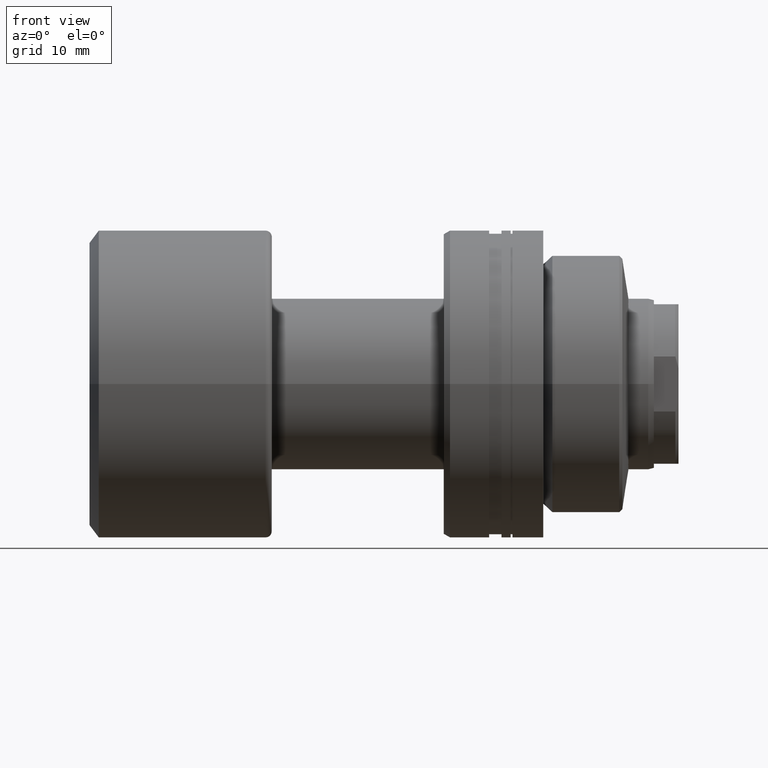
[diagram: clean part render]
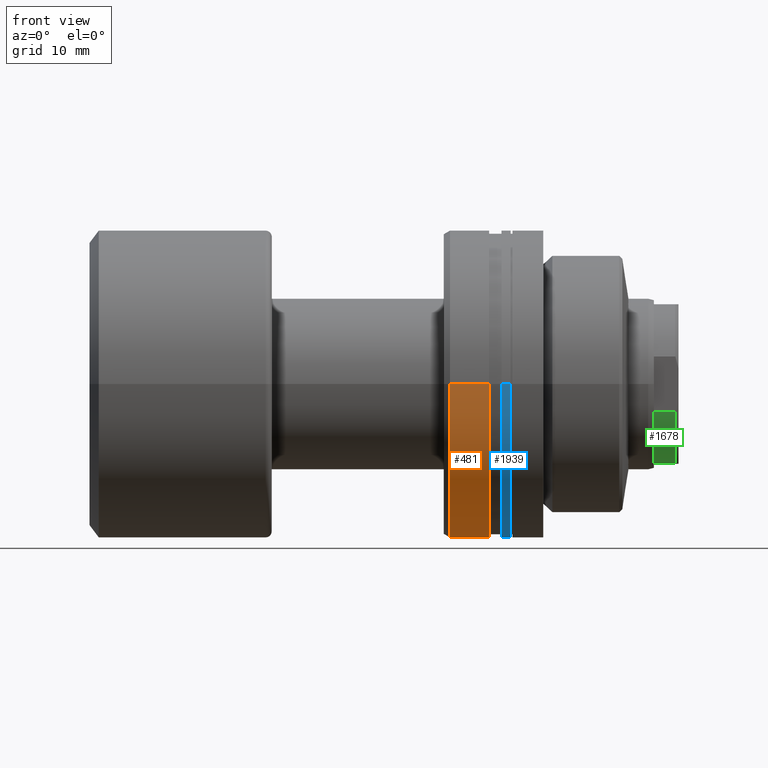
[diagram: same view with three faces highlighted in distinct colors, each labeled with its STEP entity id]
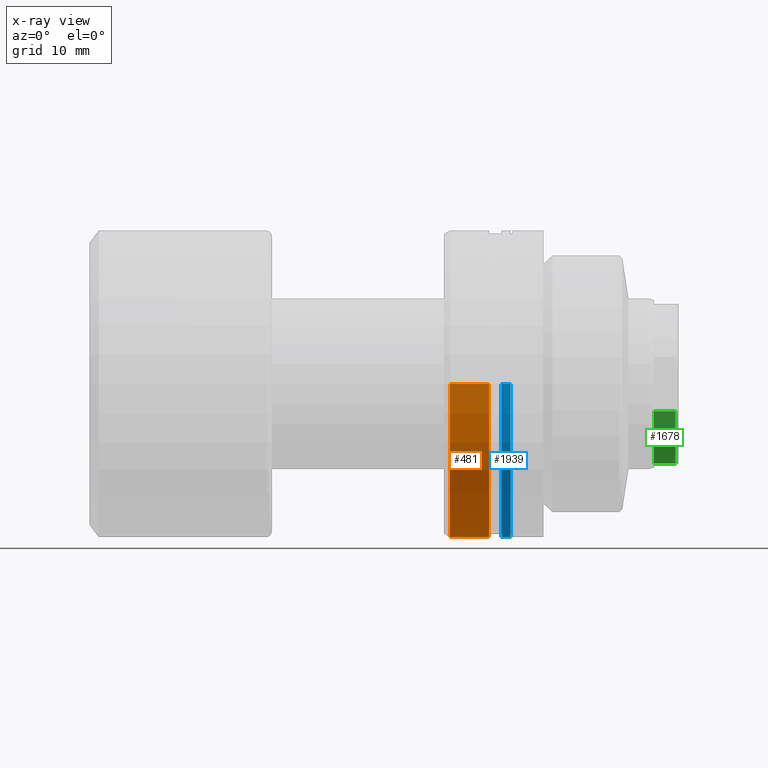
[diagram: x-ray of the same camera — body ghosted, the three highlighted faces saturated]
A machine part, front view with three faces highlighted in distinct colors.
The next image is the same camera in x-ray (body ghosted, the three faces saturated) — at least one of them is partly hidden behind the body in this view.
Their STEP definitions:

[orange] entity #481 — the highlighted cylindrical surface (partial cylindrical patch) has radius 25 mm, axis along (1, 0, 0).
#31 = FACE_OUTER_BOUND ( 'NONE', #1403, .T. ) ;
#32 = CARTESIAN_POINT ( 'NONE',  ( -24.80878161770242585, 1.056712457330933578E-14, 0.000000000000000000 ) ) ;
#368 = VERTEX_POINT ( 'NONE', #544 ) ;
#401 = DIRECTION ( 'NONE',  ( 1.000000000000000000, 1.931394410353556421E-15, -0.000000000000000000 ) ) ;
#405 = EDGE_CURVE ( 'NONE', #636, #368, #1341, .T. ) ;
#436 = CYLINDRICAL_SURFACE ( 'NONE', #562, 25.00000000000000711 ) ;
#481 = ADVANCED_FACE ( 'NONE', ( #31 ), #436, .T. ) ;
#544 = CARTESIAN_POINT ( 'NONE',  ( -31.20000000000027640, 25.00000000000000000, 0.000000000000000000 ) ) ;
#562 = AXIS2_PLACEMENT_3D ( 'NONE', #1848, #583, #951 ) ;
#583 = DIRECTION ( 'NONE',  ( 1.000000000000000000, 1.931394410353556421E-15, -0.000000000000000000 ) ) ;
#621 = DIRECTION ( 'NONE',  ( 1.000000000000000000, 1.931394410353556421E-15, -0.000000000000000000 ) ) ;
#635 = DIRECTION ( 'NONE',  ( 1.000000000000000000, 1.931394410353556421E-15, -0.000000000000000000 ) ) ;
#636 = VERTEX_POINT ( 'NONE', #2083 ) ;
#695 = CARTESIAN_POINT ( 'NONE',  ( -30.28002276692737382, 25.00000000000000711, 0.000000000000000000 ) ) ;
#884 = EDGE_CURVE ( 'NONE', #368, #1506, #1751, .T. ) ;
#951 = DIRECTION ( 'NONE',  ( -1.942890293094023551E-15, 1.000000000000000000, 0.000000000000000000 ) ) ;
#1159 = ORIENTED_EDGE ( 'NONE', *, *, #1632, .F. ) ;
#1329 = LINE ( 'NONE', #1700, #2172 ) ;
#1341 = CIRCLE ( 'NONE', #2099, 25.00000000000000000 ) ;
#1403 = EDGE_LOOP ( 'NONE', ( #1159, #1957, #2043, #1771 ) ) ;
#1405 = DIRECTION ( 'NONE',  ( 1.000000000000000000, 1.931394410353556421E-15, -0.000000000000000000 ) ) ;
#1500 = AXIS2_PLACEMENT_3D ( 'NONE', #32, #401, #2008 ) ;
#1506 = VERTEX_POINT ( 'NONE', #2025 ) ;
#1632 = EDGE_CURVE ( 'NONE', #636, #1998, #1329, .T. ) ;
#1700 = CARTESIAN_POINT ( 'NONE',  ( -30.28002276692727435, -25.00000000000000711, 3.061616997868383831E-15 ) ) ;
#1751 = LINE ( 'NONE', #695, #1977 ) ;
#1771 = ORIENTED_EDGE ( 'NONE', *, *, #1923, .F. ) ;
#1848 = CARTESIAN_POINT ( 'NONE',  ( -30.28002276692732408, 0.000000000000000000, 0.000000000000000000 ) ) ;
#1913 = CIRCLE ( 'NONE', #1500, 25.00000000000001776 ) ;
#1923 = EDGE_CURVE ( 'NONE', #1998, #1506, #1913, .T. ) ;
#1957 = ORIENTED_EDGE ( 'NONE', *, *, #405, .T. ) ;
#1977 = VECTOR ( 'NONE', #1405, 1000.000000000000000 ) ;
#1998 = VERTEX_POINT ( 'NONE', #2183 ) ;
#2008 = DIRECTION ( 'NONE',  ( -1.942890293094022762E-15, 1.000000000000000000, 0.000000000000000000 ) ) ;
#2025 = CARTESIAN_POINT ( 'NONE',  ( -24.80878161770247559, 25.00000000000002842, 0.000000000000000000 ) ) ;
#2043 = ORIENTED_EDGE ( 'NONE', *, *, #884, .T. ) ;
#2083 = CARTESIAN_POINT ( 'NONE',  ( -31.20000000000018048, -25.00000000000000000, 3.061616997868383043E-15 ) ) ;
#2099 = AXIS2_PLACEMENT_3D ( 'NONE', #2207, #621, #2193 ) ;
#2172 = VECTOR ( 'NONE', #635, 1000.000000000000000 ) ;
#2183 = CARTESIAN_POINT ( 'NONE',  ( -24.80878161770237611, -25.00000000000000711, 3.061616997868384620E-15 ) ) ;
#2193 = DIRECTION ( 'NONE',  ( -1.942890293094023946E-15, 1.000000000000000000, 0.000000000000000000 ) ) ;
#2207 = CARTESIAN_POINT ( 'NONE',  ( -31.20000000000022666, -1.776838885609536354E-15, 0.000000000000000000 ) ) ;

[blue] entity #1939 — the highlighted cylindrical surface (partial cylindrical patch) has radius 25 mm, axis along (1, 0, 0).
#56 = DIRECTION ( 'NONE',  ( 1.000000000000000000, 1.931394410353556421E-15, -0.000000000000000000 ) ) ;
#158 = AXIS2_PLACEMENT_3D ( 'NONE', #2213, #578, #442 ) ;
#192 = AXIS2_PLACEMENT_3D ( 'NONE', #241, #811, #2266 ) ;
#210 = CARTESIAN_POINT ( 'NONE',  ( -22.80000000000000071, -25.00000000000000355, 3.061616997868385804E-15 ) ) ;
#241 = CARTESIAN_POINT ( 'NONE',  ( -22.80000000000005045, 1.444687416136068295E-14, 0.000000000000000000 ) ) ;
#389 = DIRECTION ( 'NONE',  ( 1.000000000000000000, 1.931394410353556421E-15, -0.000000000000000000 ) ) ;
#424 = CYLINDRICAL_SURFACE ( 'NONE', #683, 25.00000000000002132 ) ;
#442 = DIRECTION ( 'NONE',  ( -1.942890293094022368E-15, 1.000000000000000000, 0.000000000000000000 ) ) ;
#488 = CARTESIAN_POINT ( 'NONE',  ( -21.30000000000008953, 25.00000000000003908, 0.000000000000000000 ) ) ;
#491 = ORIENTED_EDGE ( 'NONE', *, *, #1759, .F. ) ;
#515 = EDGE_CURVE ( 'NONE', #1343, #1586, #792, .T. ) ;
#539 = CIRCLE ( 'NONE', #158, 25.00000000000002132 ) ;
#578 = DIRECTION ( 'NONE',  ( 1.000000000000000000, 1.931394410353556421E-15, -0.000000000000000000 ) ) ;
#645 = CARTESIAN_POINT ( 'NONE',  ( -21.29999999999999361, -25.00000000000000355, 3.061616997868385804E-15 ) ) ;
#683 = AXIS2_PLACEMENT_3D ( 'NONE', #1984, #389, #1997 ) ;
#792 = LINE ( 'NONE', #1296, #1380 ) ;
#811 = DIRECTION ( 'NONE',  ( 1.000000000000000000, 1.931394410353556421E-15, -0.000000000000000000 ) ) ;
#972 = VECTOR ( 'NONE', #1232, 1000.000000000000000 ) ;
#1046 = EDGE_CURVE ( 'NONE', #1889, #1343, #1568, .T. ) ;
#1087 = FACE_OUTER_BOUND ( 'NONE', #1654, .T. ) ;
#1232 = DIRECTION ( 'NONE',  ( 1.000000000000000000, 1.931394410353556421E-15, -0.000000000000000000 ) ) ;
#1296 = CARTESIAN_POINT ( 'NONE',  ( -30.28002276692737382, 25.00000000000002132, 0.000000000000000000 ) ) ;
#1343 = VERTEX_POINT ( 'NONE', #1624 ) ;
#1380 = VECTOR ( 'NONE', #56, 1000.000000000000000 ) ;
#1422 = EDGE_CURVE ( 'NONE', #2130, #1586, #539, .T. ) ;
#1543 = ORIENTED_EDGE ( 'NONE', *, *, #1422, .F. ) ;
#1568 = CIRCLE ( 'NONE', #192, 25.00000000000001776 ) ;
#1586 = VERTEX_POINT ( 'NONE', #488 ) ;
#1624 = CARTESIAN_POINT ( 'NONE',  ( -22.80000000000009663, 25.00000000000003197, 0.000000000000000000 ) ) ;
#1654 = EDGE_LOOP ( 'NONE', ( #491, #1820, #1920, #1543 ) ) ;
#1759 = EDGE_CURVE ( 'NONE', #1889, #2130, #2283, .T. ) ;
#1778 = CARTESIAN_POINT ( 'NONE',  ( -30.28002276692727435, -25.00000000000002132, 3.061616997868385804E-15 ) ) ;
#1820 = ORIENTED_EDGE ( 'NONE', *, *, #1046, .T. ) ;
#1889 = VERTEX_POINT ( 'NONE', #210 ) ;
#1920 = ORIENTED_EDGE ( 'NONE', *, *, #515, .T. ) ;
#1939 = ADVANCED_FACE ( 'NONE', ( #1087 ), #424, .T. ) ;
#1984 = CARTESIAN_POINT ( 'NONE',  ( -30.28002276692732408, 0.000000000000000000, 0.000000000000000000 ) ) ;
#1997 = DIRECTION ( 'NONE',  ( -1.942890293094022368E-15, 1.000000000000000000, 0.000000000000000000 ) ) ;
#2130 = VERTEX_POINT ( 'NONE', #645 ) ;
#2213 = CARTESIAN_POINT ( 'NONE',  ( -21.30000000000003979, 1.734396577689103060E-14, 0.000000000000000000 ) ) ;
#2266 = DIRECTION ( 'NONE',  ( -1.942890293094022762E-15, 1.000000000000000000, 0.000000000000000000 ) ) ;
#2283 = LINE ( 'NONE', #1778, #972 ) ;

[green] entity #1678 — the highlighted cylindrical surface (partial cylindrical patch) has radius 13.75 mm, axis along (-1, -0, -0).
#27 = VERTEX_POINT ( 'NONE', #623 ) ;
#51 = VERTEX_POINT ( 'NONE', #1915 ) ;
#75 = AXIS2_PLACEMENT_3D ( 'NONE', #643, #1513, #115 ) ;
#115 = DIRECTION ( 'NONE',  ( 0.000000000000000000, -1.000000000000000000, 0.000000000000000000 ) ) ;
#135 = CARTESIAN_POINT ( 'NONE',  ( 91.99999999999992895, -4.479118216796772245, -12.99999999999950795 ) ) ;
#296 = DIRECTION ( 'NONE',  ( -1.000000000000000000, -1.069542322069065801E-17, -0.000000000000000000 ) ) ;
#351 = ORIENTED_EDGE ( 'NONE', *, *, #1807, .T. ) ;
#394 = LINE ( 'NONE', #1664, #1829 ) ;
#412 = DIRECTION ( 'NONE',  ( 1.000000000000000000, -1.657264799492230625E-14, -0.000000000000000000 ) ) ;
#524 = ORIENTED_EDGE ( 'NONE', *, *, #574, .F. ) ;
#574 = EDGE_CURVE ( 'NONE', #1599, #51, #2163, .T. ) ;
#597 = EDGE_CURVE ( 'NONE', #51, #1364, #1705, .T. ) ;
#623 = CARTESIAN_POINT ( 'NONE',  ( 95.49999999999997158, -4.479118216796829977, -12.99999999999950795 ) ) ;
#631 = DIRECTION ( 'NONE',  ( 1.000000000000000000, -1.657264799492230625E-14, -0.000000000000000000 ) ) ;
#643 = CARTESIAN_POINT ( 'NONE',  ( 92.00000000000014211, 9.839789363035420220E-16, 0.000000000000000000 ) ) ;
#682 = DIRECTION ( 'NONE',  ( -1.000000000000000000, -1.069542322069071964E-17, -0.000000000000000000 ) ) ;
#742 = CARTESIAN_POINT ( 'NONE',  ( 95.49999999999997158, -13.00000000000207123, -4.479118216792409513 ) ) ;
#746 = VECTOR ( 'NONE', #631, 1000.000000000000000 ) ;
#869 = ORIENTED_EDGE ( 'NONE', *, *, #1460, .T. ) ;
#894 = CARTESIAN_POINT ( 'NONE',  ( 95.49999999999997158, 1.021412917575957477E-15, 0.000000000000000000 ) ) ;
#999 = DIRECTION ( 'NONE',  ( 1.069542322069065801E-17, -1.000000000000000000, 0.000000000000000000 ) ) ;
#1192 = CARTESIAN_POINT ( 'NONE',  ( 91.99999999999977263, -13.00000000000201261, -4.479118216792409513 ) ) ;
#1198 = AXIS2_PLACEMENT_3D ( 'NONE', #1340, #296, #999 ) ;
#1285 = ORIENTED_EDGE ( 'NONE', *, *, #597, .F. ) ;
#1340 = CARTESIAN_POINT ( 'NONE',  ( 0.000000000000000000, 0.000000000000000000, 0.000000000000000000 ) ) ;
#1364 = VERTEX_POINT ( 'NONE', #742 ) ;
#1376 = CYLINDRICAL_SURFACE ( 'NONE', #1198, 13.75000000000000178 ) ;
#1460 = EDGE_CURVE ( 'NONE', #1599, #27, #394, .T. ) ;
#1513 = DIRECTION ( 'NONE',  ( -1.000000000000000000, -1.069542322069065801E-17, -0.000000000000000000 ) ) ;
#1599 = VERTEX_POINT ( 'NONE', #135 ) ;
#1607 = AXIS2_PLACEMENT_3D ( 'NONE', #894, #682, #1767 ) ;
#1664 = CARTESIAN_POINT ( 'NONE',  ( 91.99999999999992895, -4.479118216796772245, -12.99999999999950795 ) ) ;
#1678 = ADVANCED_FACE ( 'NONE', ( #2053 ), #1376, .T. ) ;
#1705 = LINE ( 'NONE', #1192, #746 ) ;
#1719 = CIRCLE ( 'NONE', #1607, 13.75000000000000178 ) ;
#1767 = DIRECTION ( 'NONE',  ( 0.000000000000000000, -1.000000000000000000, 0.000000000000000000 ) ) ;
#1807 = EDGE_CURVE ( 'NONE', #27, #1364, #1719, .T. ) ;
#1829 = VECTOR ( 'NONE', #412, 1000.000000000000000 ) ;
#1915 = CARTESIAN_POINT ( 'NONE',  ( 91.99999999999977263, -13.00000000000201261, -4.479118216792409513 ) ) ;
#2053 = FACE_OUTER_BOUND ( 'NONE', #2300, .T. ) ;
#2163 = CIRCLE ( 'NONE', #75, 13.75000000000000178 ) ;
#2300 = EDGE_LOOP ( 'NONE', ( #869, #351, #1285, #524 ) ) ;